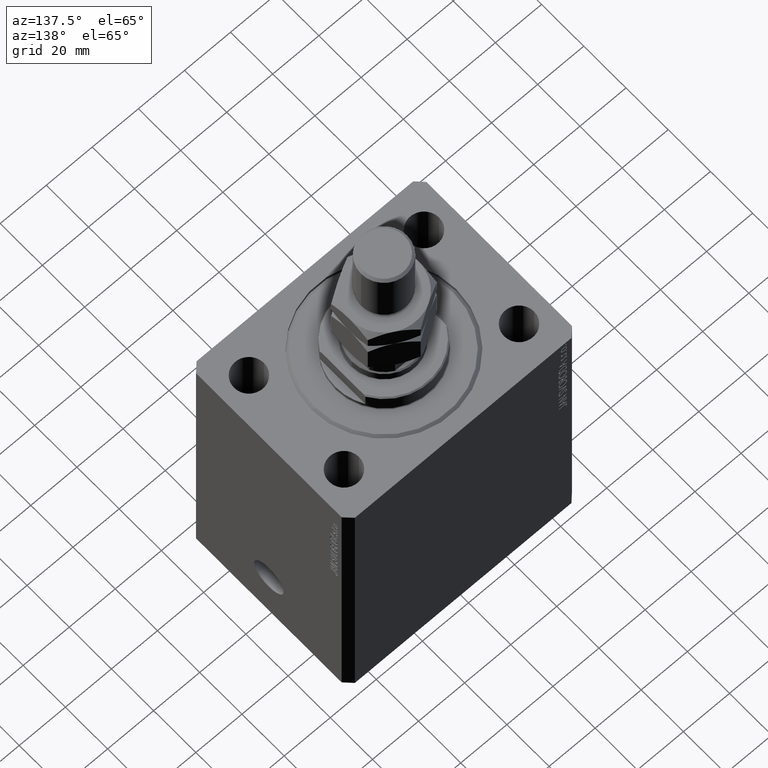
[diagram: clean part render]
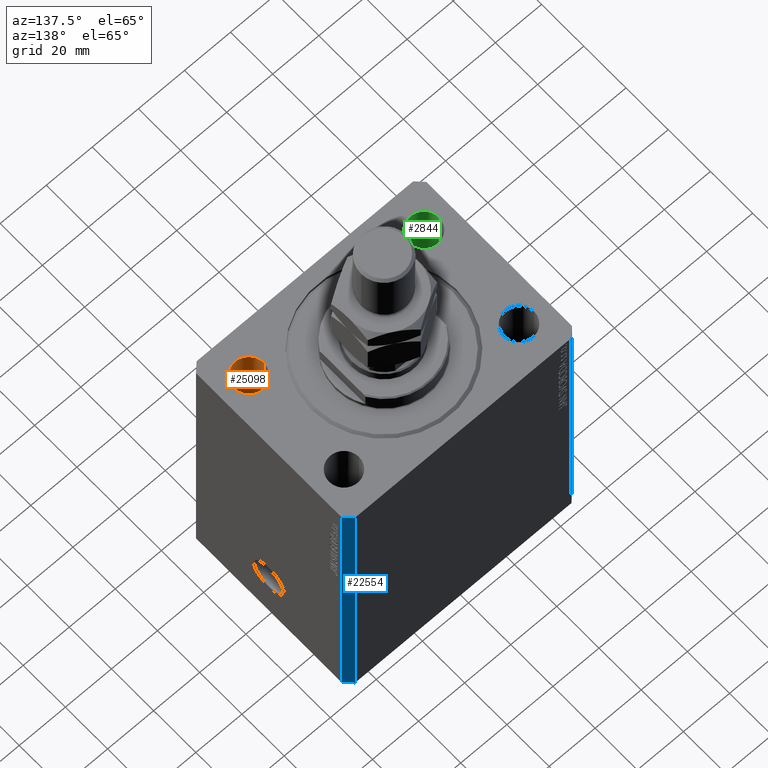
[diagram: same view with three faces highlighted in distinct colors, each labeled with its STEP entity id]
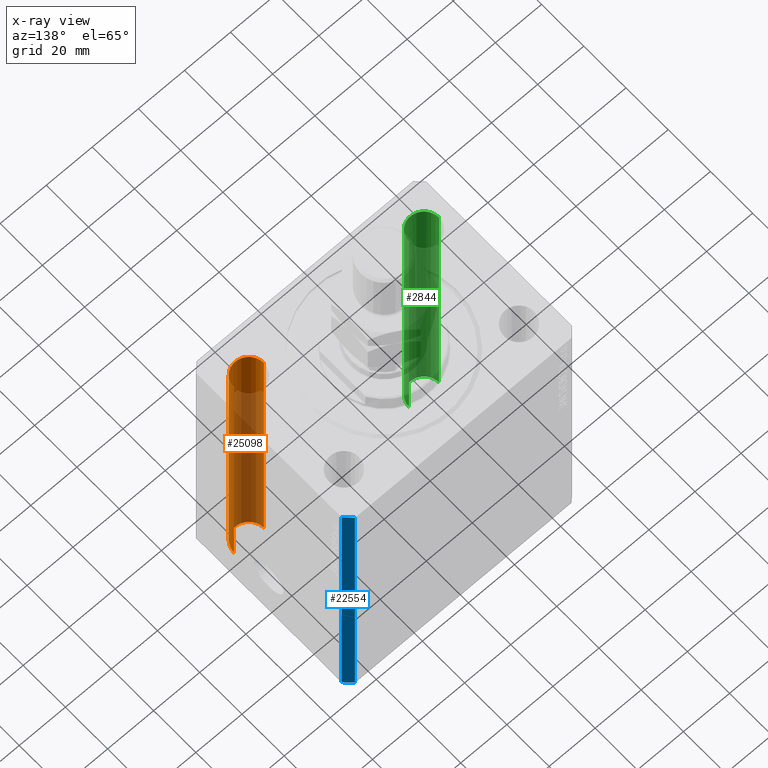
[diagram: x-ray of the same camera — body ghosted, the three highlighted faces saturated]
A machine part, auxiliary view with three faces highlighted in distinct colors.
The next image is the same camera in x-ray (body ghosted, the three faces saturated) — at least one of them is partly hidden behind the body in this view.
Their STEP definitions:

[orange] entity #25098 — the highlighted cylindrical surface (edge-blend (fillet) strip) has radius 6.5 mm, axis along (0, 0, 1).
#984 = EDGE_CURVE ( 'NONE', #26321, #31486, #13980, .T. ) ;
#2744 = FACE_OUTER_BOUND ( 'NONE', #3325, .T. ) ;
#2919 = CARTESIAN_POINT ( 'NONE',  ( 44.49999999999999289, -22.50000000000000000, 0.000000000000000000 ) ) ;
#3114 = DIRECTION ( 'NONE',  ( 1.000000000000000000, 0.000000000000000000, 0.000000000000000000 ) ) ;
#3325 = EDGE_LOOP ( 'NONE', ( #22618, #45025, #24311, #43685 ) ) ;
#4533 = VECTOR ( 'NONE', #27980, 1000.000000000000000 ) ;
#6503 = CARTESIAN_POINT ( 'NONE',  ( 37.99999999999999289, -22.50000000000000000, -143.3847763108502136 ) ) ;
#6699 = CARTESIAN_POINT ( 'NONE',  ( 31.49999999999999289, -22.50000000000000000, -143.3847763108502136 ) ) ;
#7030 = AXIS2_PLACEMENT_3D ( 'NONE', #6503, #20302, #34509 ) ;
#8015 = AXIS2_PLACEMENT_3D ( 'NONE', #42118, #20883, #3114 ) ;
#13453 = CARTESIAN_POINT ( 'NONE',  ( 44.49999999999999289, -22.50000000000000000, -125.0000000000000000 ) ) ;
#13980 = CIRCLE ( 'NONE', #8015, 6.499999999999999112 ) ;
#15292 = EDGE_CURVE ( 'NONE', #31486, #39870, #35838, .T. ) ;
#15909 = CARTESIAN_POINT ( 'NONE',  ( 31.49999999999999289, -22.50000000000000000, 0.000000000000000000 ) ) ;
#18575 = CIRCLE ( 'NONE', #34916, 6.499999999999999112 ) ;
#20302 = DIRECTION ( 'NONE',  ( -0.000000000000000000, -0.000000000000000000, 1.000000000000000000 ) ) ;
#20883 = DIRECTION ( 'NONE',  ( -0.000000000000000000, -0.000000000000000000, -1.000000000000000000 ) ) ;
#22046 = DIRECTION ( 'NONE',  ( 1.000000000000000000, 0.000000000000000000, 0.000000000000000000 ) ) ;
#22618 = ORIENTED_EDGE ( 'NONE', *, *, #984, .T. ) ;
#23079 = CARTESIAN_POINT ( 'NONE',  ( 44.49999999999999289, -22.50000000000000000, -143.3847763108502136 ) ) ;
#24311 = ORIENTED_EDGE ( 'NONE', *, *, #42363, .T. ) ;
#25098 = ADVANCED_FACE ( 'NONE', ( #2744 ), #31485, .F. ) ;
#26321 = VERTEX_POINT ( 'NONE', #13453 ) ;
#27683 = LINE ( 'NONE', #23079, #35647 ) ;
#27917 = DIRECTION ( 'NONE',  ( -0.000000000000000000, -0.000000000000000000, 1.000000000000000000 ) ) ;
#27980 = DIRECTION ( 'NONE',  ( -0.000000000000000000, -0.000000000000000000, 1.000000000000000000 ) ) ;
#30811 = VERTEX_POINT ( 'NONE', #2919 ) ;
#31485 = CYLINDRICAL_SURFACE ( 'NONE', #7030, 6.499999999999999112 ) ;
#31486 = VERTEX_POINT ( 'NONE', #32233 ) ;
#32233 = CARTESIAN_POINT ( 'NONE',  ( 31.49999999999999289, -22.50000000000000000, -125.0000000000000000 ) ) ;
#34509 = DIRECTION ( 'NONE',  ( 1.000000000000000000, 0.000000000000000000, 0.000000000000000000 ) ) ;
#34916 = AXIS2_PLACEMENT_3D ( 'NONE', #39070, #39987, #22046 ) ;
#35647 = VECTOR ( 'NONE', #27917, 1000.000000000000000 ) ;
#35838 = LINE ( 'NONE', #6699, #4533 ) ;
#39070 = CARTESIAN_POINT ( 'NONE',  ( 37.99999999999999289, -22.50000000000000000, 0.000000000000000000 ) ) ;
#39870 = VERTEX_POINT ( 'NONE', #15909 ) ;
#39987 = DIRECTION ( 'NONE',  ( 0.000000000000000000, 0.000000000000000000, 1.000000000000000000 ) ) ;
#42118 = CARTESIAN_POINT ( 'NONE',  ( 37.99999999999999289, -22.50000000000000000, -125.0000000000000000 ) ) ;
#42253 = EDGE_CURVE ( 'NONE', #26321, #30811, #27683, .T. ) ;
#42363 = EDGE_CURVE ( 'NONE', #39870, #30811, #18575, .T. ) ;
#43685 = ORIENTED_EDGE ( 'NONE', *, *, #42253, .F. ) ;
#45025 = ORIENTED_EDGE ( 'NONE', *, *, #15292, .T. ) ;

[blue] entity #22554 — the highlighted planar face has unit normal (0.7071, 0.7071, 0).
#1465 = LINE ( 'NONE', #26708, #8083 ) ;
#4047 = CARTESIAN_POINT ( 'NONE',  ( 47.00000000000056843, 37.49999999999999289, -125.0000000000000000 ) ) ;
#6912 = LINE ( 'NONE', #46145, #30237 ) ;
#7889 = ORIENTED_EDGE ( 'NONE', *, *, #37297, .F. ) ;
#8083 = VECTOR ( 'NONE', #36688, 1000.000000000000000 ) ;
#10490 = VECTOR ( 'NONE', #36022, 1000.000000000000000 ) ;
#13138 = VERTEX_POINT ( 'NONE', #32572 ) ;
#14662 = CARTESIAN_POINT ( 'NONE',  ( 50.00000000000051870, 34.49999999999995026, -125.0000000000000000 ) ) ;
#14751 = DIRECTION ( 'NONE',  ( 0.7071067811865588970, 0.7071067811865361374, -0.000000000000000000 ) ) ;
#15135 = DIRECTION ( 'NONE',  ( -0.7071067811865361374, 0.7071067811865588970, 0.000000000000000000 ) ) ;
#18888 = LINE ( 'NONE', #14662, #29296 ) ;
#18974 = CARTESIAN_POINT ( 'NONE',  ( 50.00000000000051870, 34.49999999999995026, -125.0000000000000000 ) ) ;
#19573 = EDGE_CURVE ( 'NONE', #45004, #38674, #18888, .T. ) ;
#21124 = AXIS2_PLACEMENT_3D ( 'NONE', #18974, #14751, #40639 ) ;
#22554 = ADVANCED_FACE ( 'NONE', ( #43473 ), #33411, .T. ) ;
#23120 = ORIENTED_EDGE ( 'NONE', *, *, #19573, .T. ) ;
#26697 = EDGE_LOOP ( 'NONE', ( #29615, #7889, #23120, #36693 ) ) ;
#26708 = CARTESIAN_POINT ( 'NONE',  ( 47.00000000000056843, 37.49999999999999289, -125.0000000000000000 ) ) ;
#28378 = EDGE_CURVE ( 'NONE', #13138, #40555, #6912, .T. ) ;
#28620 = LINE ( 'NONE', #32544, #10490 ) ;
#29296 = VECTOR ( 'NONE', #15135, 1000.000000000000114 ) ;
#29615 = ORIENTED_EDGE ( 'NONE', *, *, #28378, .F. ) ;
#30237 = VECTOR ( 'NONE', #32114, 1000.000000000000114 ) ;
#32114 = DIRECTION ( 'NONE',  ( -0.7071067811865361374, 0.7071067811865588970, 0.000000000000000000 ) ) ;
#32544 = CARTESIAN_POINT ( 'NONE',  ( 50.00000000000051870, 34.49999999999995026, -125.0000000000000000 ) ) ;
#32572 = CARTESIAN_POINT ( 'NONE',  ( 50.00000000000051870, 34.49999999999995026, 0.000000000000000000 ) ) ;
#33411 = PLANE ( 'NONE',  #21124 ) ;
#36022 = DIRECTION ( 'NONE',  ( 0.000000000000000000, 0.000000000000000000, 1.000000000000000000 ) ) ;
#36688 = DIRECTION ( 'NONE',  ( 0.000000000000000000, 0.000000000000000000, 1.000000000000000000 ) ) ;
#36693 = ORIENTED_EDGE ( 'NONE', *, *, #46204, .T. ) ;
#37297 = EDGE_CURVE ( 'NONE', #45004, #13138, #28620, .T. ) ;
#38674 = VERTEX_POINT ( 'NONE', #4047 ) ;
#40555 = VERTEX_POINT ( 'NONE', #43994 ) ;
#40639 = DIRECTION ( 'NONE',  ( -0.7071067811865361374, 0.7071067811865588970, 0.000000000000000000 ) ) ;
#41738 = CARTESIAN_POINT ( 'NONE',  ( 50.00000000000051870, 34.49999999999995026, -125.0000000000000000 ) ) ;
#43473 = FACE_OUTER_BOUND ( 'NONE', #26697, .T. ) ;
#43994 = CARTESIAN_POINT ( 'NONE',  ( 47.00000000000056843, 37.49999999999999289, 0.000000000000000000 ) ) ;
#45004 = VERTEX_POINT ( 'NONE', #41738 ) ;
#46145 = CARTESIAN_POINT ( 'NONE',  ( 50.00000000000051870, 34.49999999999995026, 0.000000000000000000 ) ) ;
#46204 = EDGE_CURVE ( 'NONE', #38674, #40555, #1465, .T. ) ;

[green] entity #2844 — the highlighted cylindrical surface (edge-blend (fillet) strip) has radius 6.5 mm, axis along (0, 0, 1).
#377 = DIRECTION ( 'NONE',  ( -0.000000000000000000, -0.000000000000000000, 1.000000000000000000 ) ) ;
#1258 = CARTESIAN_POINT ( 'NONE',  ( -37.99999999999999289, -22.50000000000000000, 0.000000000000000000 ) ) ;
#2844 = ADVANCED_FACE ( 'NONE', ( #3542 ), #34823, .F. ) ;
#2993 = VECTOR ( 'NONE', #16518, 1000.000000000000000 ) ;
#3542 = FACE_OUTER_BOUND ( 'NONE', #9867, .T. ) ;
#4467 = DIRECTION ( 'NONE',  ( -0.000000000000000000, -0.000000000000000000, -1.000000000000000000 ) ) ;
#7197 = ORIENTED_EDGE ( 'NONE', *, *, #13057, .T. ) ;
#8869 = EDGE_CURVE ( 'NONE', #45569, #31036, #32703, .T. ) ;
#9867 = EDGE_LOOP ( 'NONE', ( #45843, #7197, #42884, #11225 ) ) ;
#10289 = CARTESIAN_POINT ( 'NONE',  ( -31.49999999999999289, -22.50000000000000000, -125.0000000000000000 ) ) ;
#11225 = ORIENTED_EDGE ( 'NONE', *, *, #38375, .F. ) ;
#12301 = CARTESIAN_POINT ( 'NONE',  ( -44.49999999999999289, -22.50000000000000000, -143.3847763108502136 ) ) ;
#13057 = EDGE_CURVE ( 'NONE', #31036, #35302, #19796, .T. ) ;
#14805 = AXIS2_PLACEMENT_3D ( 'NONE', #18747, #4467, #43006 ) ;
#16197 = DIRECTION ( 'NONE',  ( 1.000000000000000000, 0.000000000000000000, 0.000000000000000000 ) ) ;
#16518 = DIRECTION ( 'NONE',  ( -0.000000000000000000, -0.000000000000000000, 1.000000000000000000 ) ) ;
#17611 = CARTESIAN_POINT ( 'NONE',  ( -44.49999999999999289, -22.50000000000000000, -125.0000000000000000 ) ) ;
#18747 = CARTESIAN_POINT ( 'NONE',  ( -37.99999999999999289, -22.50000000000000000, -125.0000000000000000 ) ) ;
#19796 = LINE ( 'NONE', #12301, #2993 ) ;
#24356 = DIRECTION ( 'NONE',  ( 1.000000000000000000, 0.000000000000000000, 0.000000000000000000 ) ) ;
#26989 = CARTESIAN_POINT ( 'NONE',  ( -44.49999999999999289, -22.50000000000000000, 0.000000000000000000 ) ) ;
#27715 = VECTOR ( 'NONE', #377, 1000.000000000000000 ) ;
#29579 = LINE ( 'NONE', #36065, #27715 ) ;
#31036 = VERTEX_POINT ( 'NONE', #17611 ) ;
#32703 = CIRCLE ( 'NONE', #14805, 6.499999999999999112 ) ;
#33241 = DIRECTION ( 'NONE',  ( 0.000000000000000000, 0.000000000000000000, 1.000000000000000000 ) ) ;
#34823 = CYLINDRICAL_SURFACE ( 'NONE', #46088, 6.499999999999999112 ) ;
#35302 = VERTEX_POINT ( 'NONE', #26989 ) ;
#36065 = CARTESIAN_POINT ( 'NONE',  ( -31.49999999999999289, -22.50000000000000000, -143.3847763108502136 ) ) ;
#36411 = CARTESIAN_POINT ( 'NONE',  ( -31.49999999999999289, -22.50000000000000000, 0.000000000000000000 ) ) ;
#36554 = CIRCLE ( 'NONE', #42550, 6.499999999999999112 ) ;
#37351 = EDGE_CURVE ( 'NONE', #35302, #43672, #36554, .T. ) ;
#38375 = EDGE_CURVE ( 'NONE', #45569, #43672, #29579, .T. ) ;
#39035 = CARTESIAN_POINT ( 'NONE',  ( -37.99999999999999289, -22.50000000000000000, -143.3847763108502136 ) ) ;
#42550 = AXIS2_PLACEMENT_3D ( 'NONE', #1258, #33241, #16197 ) ;
#42884 = ORIENTED_EDGE ( 'NONE', *, *, #37351, .T. ) ;
#43006 = DIRECTION ( 'NONE',  ( 1.000000000000000000, 0.000000000000000000, 0.000000000000000000 ) ) ;
#43672 = VERTEX_POINT ( 'NONE', #36411 ) ;
#44493 = DIRECTION ( 'NONE',  ( -0.000000000000000000, -0.000000000000000000, 1.000000000000000000 ) ) ;
#45569 = VERTEX_POINT ( 'NONE', #10289 ) ;
#45843 = ORIENTED_EDGE ( 'NONE', *, *, #8869, .T. ) ;
#46088 = AXIS2_PLACEMENT_3D ( 'NONE', #39035, #44493, #24356 ) ;